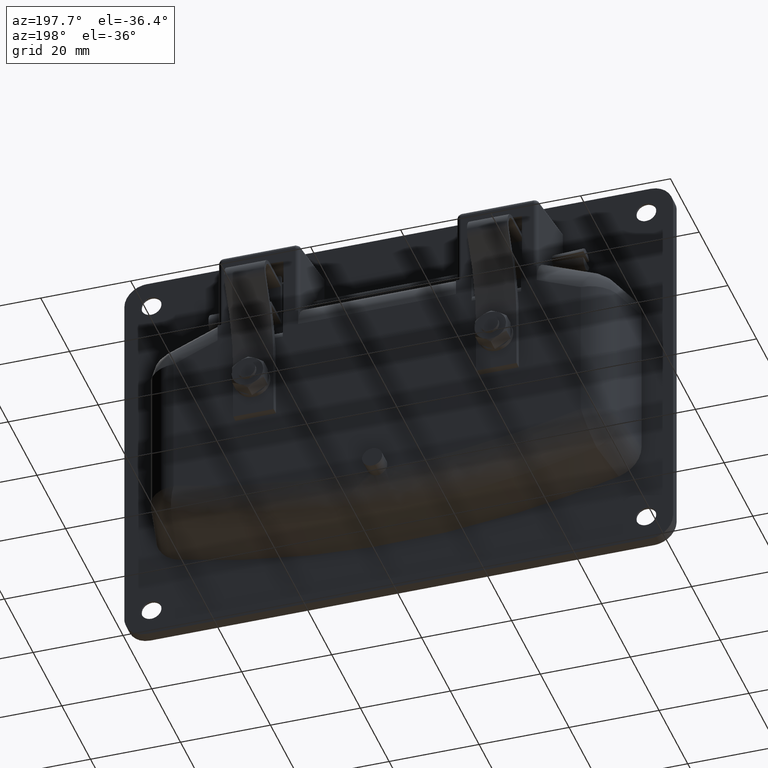
[diagram: clean part render]
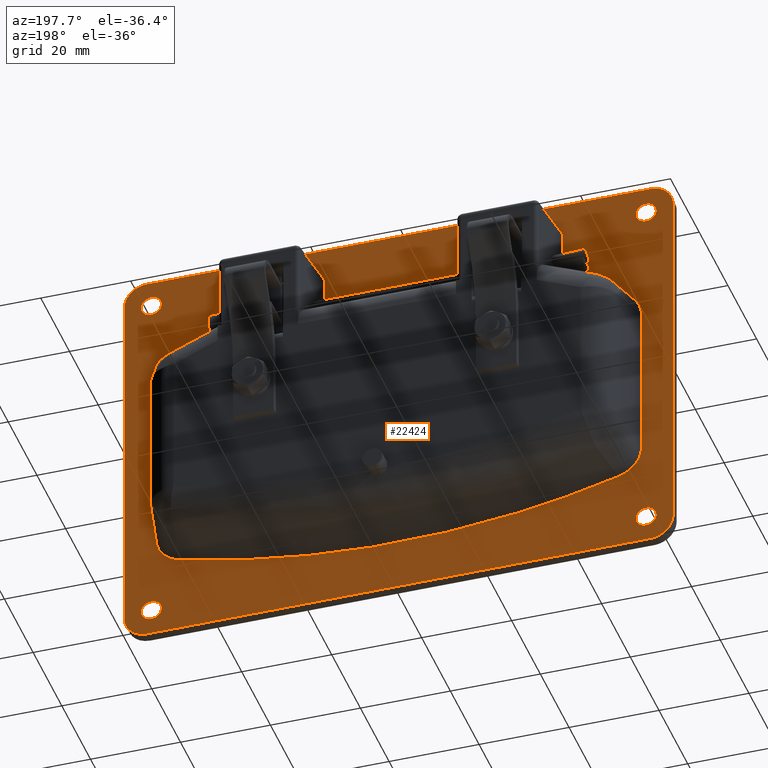
[diagram: same view with one face highlighted and labeled with its STEP entity id]
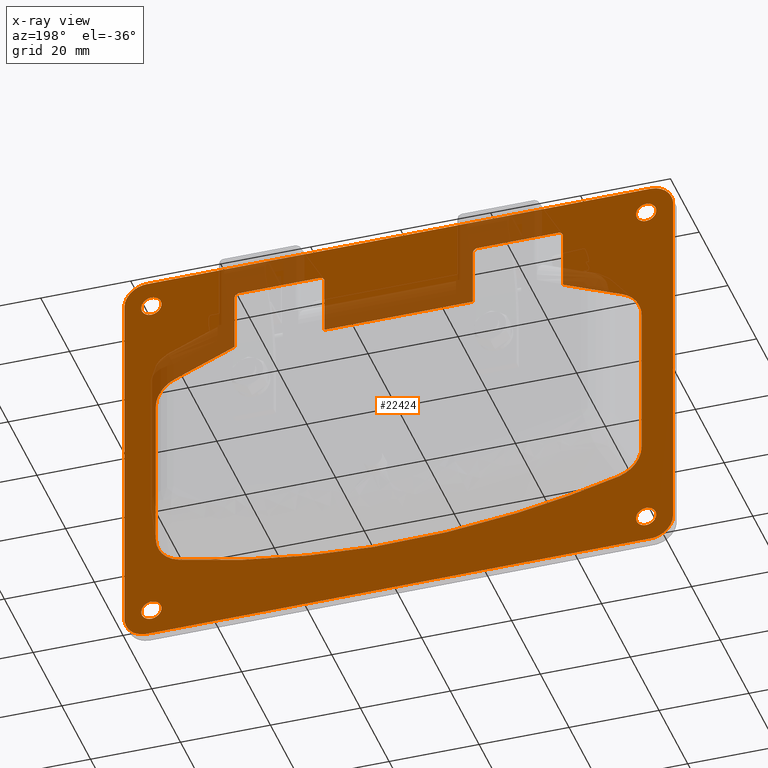
[diagram: x-ray of the same camera — body ghosted, the highlighted face saturated]
A machine part, auxiliary view. The second image highlights one B-rep face of the part: STEP entity #22424.
The next image is the same camera in x-ray: the body ghosted, the highlighted face saturated — about 16% of this face is hidden behind the body in this view.
In plain terms, the highlighted face is a freeform B-spline surface patch.
Its self-contained STEP definition (entity closure, byte-faithful):
#14169=CARTESIAN_POINT('',(-3.999999999999885,55.0,-69.750000000000000));
#14170=VERTEX_POINT('',#14169);
#14171=CARTESIAN_POINT('',(-3.999999999999884,56.284390523104292,-69.347387610697837));
#14172=VERTEX_POINT('',#14171);
#14173=CARTESIAN_POINT('',(-3.999999999999885,55.0,-69.750000000000000));
#14174=CARTESIAN_POINT('',(-3.999999999999885,55.705297851109535,-69.750000000000000));
#14175=CARTESIAN_POINT('',(-3.999999999999883,56.284390523104285,-69.347387610697837));
#14183=(BOUNDED_CURVE()B_SPLINE_CURVE(2,(#14173,#14174,#14175),.UNSPECIFIED.,.F.,.U.)B_SPLINE_CURVE_WITH_KNOTS((3,3),(0.500000000000000,0.598090608938928),.UNSPECIFIED.)CURVE()GEOMETRIC_REPRESENTATION_ITEM()RATIONAL_B_SPLINE_CURVE((1.0,0.885079703250023,0.860340221601227))REPRESENTATION_ITEM(''));
#14184=EDGE_CURVE('',#14170,#14172,#14183,.T.);
#14257=CARTESIAN_POINT('',(-3.999999999999885,57.243064000871406,-67.676532965744940));
#14258=VERTEX_POINT('',#14257);
#14264=CARTESIAN_POINT('',(-3.999999999999885,55.0,-65.250000000000000));
#14265=VERTEX_POINT('',#14264);
#14266=CARTESIAN_POINT('',(-3.999999999999884,57.243064000871414,-67.676532965744940));
#14267=CARTESIAN_POINT('',(-3.999999999999884,57.250000000000007,-67.588402741126188));
#14268=CARTESIAN_POINT('',(-3.999999999999885,57.250000000000000,-67.500000000000000));
#14269=CARTESIAN_POINT('',(-3.999999999999885,57.249999999999993,-65.250000000000000));
#14270=CARTESIAN_POINT('',(-3.999999999999885,55.0,-65.250000000000000));
#14278=(BOUNDED_CURVE()B_SPLINE_CURVE(2,(#14266,#14267,#14268,#14269,#14270),.UNSPECIFIED.,.F.,.U.)B_SPLINE_CURVE_WITH_KNOTS((3,2,3),(0.736331300578155,0.750000000000000,1.0),.UNSPECIFIED.)CURVE()GEOMETRIC_REPRESENTATION_ITEM()RATIONAL_B_SPLINE_CURVE((0.969723356057846,0.983986122517370,1.0,0.707106781186547,1.0))REPRESENTATION_ITEM(''));
#14279=EDGE_CURVE('',#14258,#14265,#14278,.T.);
#14281=CARTESIAN_POINT('',(-3.999999999999885,55.0,-65.250000000000000));
#14282=CARTESIAN_POINT('',(-3.999999999999885,52.749999999999986,-65.250000000000000));
#14283=CARTESIAN_POINT('',(-3.999999999999885,52.750000000000000,-67.500000000000000));
#14284=CARTESIAN_POINT('',(-3.999999999999885,52.749999999999986,-69.750000000000000));
#14285=CARTESIAN_POINT('',(-3.999999999999885,55.0,-69.750000000000000));
#14293=(BOUNDED_CURVE()B_SPLINE_CURVE(2,(#14281,#14282,#14283,#14284,#14285),.UNSPECIFIED.,.F.,.U.)B_SPLINE_CURVE_WITH_KNOTS((3,2,3),(0.0,0.250000000000000,0.500000000000000),.UNSPECIFIED.)CURVE()GEOMETRIC_REPRESENTATION_ITEM()RATIONAL_B_SPLINE_CURVE((1.0,0.707106781186547,1.0,0.707106781186547,1.0))REPRESENTATION_ITEM(''));
#14294=EDGE_CURVE('',#14265,#14170,#14293,.T.);
#14313=CARTESIAN_POINT('',(-3.999999999999884,56.284390523104300,-69.347387610697837));
#14314=CARTESIAN_POINT('',(-3.999999999999885,57.159445367538900,-68.739008436299613));
#14315=CARTESIAN_POINT('',(-3.999999999999885,57.243064000871414,-67.676532965744940));
#14323=(BOUNDED_CURVE()B_SPLINE_CURVE(2,(#14313,#14314,#14315),.UNSPECIFIED.,.F.,.U.)B_SPLINE_CURVE_WITH_KNOTS((3,3),(0.598090608938927,0.736331300578156),.UNSPECIFIED.)CURVE()GEOMETRIC_REPRESENTATION_ITEM()RATIONAL_B_SPLINE_CURVE((0.860340221601227,0.825474467469197,0.969723356057846))REPRESENTATION_ITEM(''));
#14324=EDGE_CURVE('',#14172,#14258,#14323,.T.);
#14493=CARTESIAN_POINT('',(-3.999999999999885,55.0,10.250000000000000));
#14494=VERTEX_POINT('',#14493);
#14495=CARTESIAN_POINT('',(-3.999999999999885,56.284390523104292,10.652612389302160));
#14496=VERTEX_POINT('',#14495);
#14497=CARTESIAN_POINT('',(-3.999999999999885,55.0,10.250000000000000));
#14498=CARTESIAN_POINT('',(-3.999999999999885,55.705297851109535,10.250000000000000));
#14499=CARTESIAN_POINT('',(-3.999999999999885,56.284390523104285,10.652612389302158));
#14507=(BOUNDED_CURVE()B_SPLINE_CURVE(2,(#14497,#14498,#14499),.UNSPECIFIED.,.F.,.U.)B_SPLINE_CURVE_WITH_KNOTS((3,3),(0.500000000000000,0.598090608938928),.UNSPECIFIED.)CURVE()GEOMETRIC_REPRESENTATION_ITEM()RATIONAL_B_SPLINE_CURVE((1.0,0.885079703250023,0.860340221601227))REPRESENTATION_ITEM(''));
#14508=EDGE_CURVE('',#14494,#14496,#14507,.T.);
#14581=CARTESIAN_POINT('',(-3.999999999999885,57.243064000871421,12.323467034255060));
#14582=VERTEX_POINT('',#14581);
#14588=CARTESIAN_POINT('',(-3.999999999999885,55.0,14.750000000000000));
#14589=VERTEX_POINT('',#14588);
#14590=CARTESIAN_POINT('',(-3.999999999999884,57.243064000871421,12.323467034255065));
#14591=CARTESIAN_POINT('',(-3.999999999999884,57.250000000000000,12.411597258873794));
#14592=CARTESIAN_POINT('',(-3.999999999999885,57.250000000000000,12.500000000000000));
#14593=CARTESIAN_POINT('',(-3.999999999999885,57.249999999999993,14.750000000000007));
#14594=CARTESIAN_POINT('',(-3.999999999999885,55.0,14.750000000000000));
#14602=(BOUNDED_CURVE()B_SPLINE_CURVE(2,(#14590,#14591,#14592,#14593,#14594),.UNSPECIFIED.,.F.,.U.)B_SPLINE_CURVE_WITH_KNOTS((3,2,3),(0.736331300578156,0.750000000000000,1.0),.UNSPECIFIED.)CURVE()GEOMETRIC_REPRESENTATION_ITEM()RATIONAL_B_SPLINE_CURVE((0.969723356057847,0.983986122517371,1.0,0.707106781186547,1.0))REPRESENTATION_ITEM(''));
#14603=EDGE_CURVE('',#14582,#14589,#14602,.T.);
#14605=CARTESIAN_POINT('',(-3.999999999999885,55.0,14.750000000000000));
#14606=CARTESIAN_POINT('',(-3.999999999999885,52.749999999999986,14.750000000000007));
#14607=CARTESIAN_POINT('',(-3.999999999999885,52.750000000000000,12.500000000000000));
#14608=CARTESIAN_POINT('',(-3.999999999999885,52.749999999999986,10.250000000000000));
#14609=CARTESIAN_POINT('',(-3.999999999999885,55.0,10.250000000000000));
#14617=(BOUNDED_CURVE()B_SPLINE_CURVE(2,(#14605,#14606,#14607,#14608,#14609),.UNSPECIFIED.,.F.,.U.)B_SPLINE_CURVE_WITH_KNOTS((3,2,3),(0.0,0.250000000000000,0.500000000000000),.UNSPECIFIED.)CURVE()GEOMETRIC_REPRESENTATION_ITEM()RATIONAL_B_SPLINE_CURVE((1.0,0.707106781186547,1.0,0.707106781186547,1.0))REPRESENTATION_ITEM(''));
#14618=EDGE_CURVE('',#14589,#14494,#14617,.T.);
#14637=CARTESIAN_POINT('',(-3.999999999999885,56.284390523104300,10.652612389302160));
#14638=CARTESIAN_POINT('',(-3.999999999999885,57.159445367538908,11.260991563700397));
#14639=CARTESIAN_POINT('',(-3.999999999999885,57.243064000871428,12.323467034255060));
#14647=(BOUNDED_CURVE()B_SPLINE_CURVE(2,(#14637,#14638,#14639),.UNSPECIFIED.,.F.,.U.)B_SPLINE_CURVE_WITH_KNOTS((3,3),(0.598090608938927,0.736331300578156),.UNSPECIFIED.)CURVE()GEOMETRIC_REPRESENTATION_ITEM()RATIONAL_B_SPLINE_CURVE((0.860340221601227,0.825474467469197,0.969723356057846))REPRESENTATION_ITEM(''));
#14648=EDGE_CURVE('',#14496,#14582,#14647,.T.);
#14841=CARTESIAN_POINT('',(-3.999999999999885,-57.245803296428832,-67.637359214286363));
#14842=VERTEX_POINT('',#14841);
#14848=CARTESIAN_POINT('',(-3.999999999999885,-55.0,-69.750000000000000));
#14849=VERTEX_POINT('',#14848);
#14850=CARTESIAN_POINT('',(-3.999999999999885,-55.0,-69.750000000000000));
#14851=CARTESIAN_POINT('',(-3.999999999999885,-57.116588649909062,-69.750000000000000));
#14852=CARTESIAN_POINT('',(-3.999999999999884,-57.245803296428839,-67.637359214286363));
#14860=(BOUNDED_CURVE()B_SPLINE_CURVE(2,(#14850,#14851,#14852),.UNSPECIFIED.,.F.,.U.)B_SPLINE_CURVE_WITH_KNOTS((3,3),(0.500000000000000,0.739332962190808),.UNSPECIFIED.)CURVE()GEOMETRIC_REPRESENTATION_ITEM()RATIONAL_B_SPLINE_CURVE((1.0,0.719603993343104,0.976072041563556))REPRESENTATION_ITEM(''));
#14861=EDGE_CURVE('',#14849,#14842,#14860,.T.);
#14863=CARTESIAN_POINT('',(-3.999999999999885,-54.208859557424127,-69.606323052174304));
#14864=VERTEX_POINT('',#14863);
#14865=CARTESIAN_POINT('',(-3.999999999999885,-54.208859557424134,-69.606323052174304));
#14866=CARTESIAN_POINT('',(-3.999999999999885,-54.591383381134811,-69.750000000000014));
#14867=CARTESIAN_POINT('',(-3.999999999999885,-55.0,-69.750000000000000));
#14875=(BOUNDED_CURVE()B_SPLINE_CURVE(2,(#14865,#14866,#14867),.UNSPECIFIED.,.F.,.U.)B_SPLINE_CURVE_WITH_KNOTS((3,3),(0.440284170869690,0.500000000000000),.UNSPECIFIED.)CURVE()GEOMETRIC_REPRESENTATION_ITEM()RATIONAL_B_SPLINE_CURVE((0.893499554600008,0.930038554367637,1.0))REPRESENTATION_ITEM(''));
#14876=EDGE_CURVE('',#14864,#14849,#14875,.T.);
#14926=CARTESIAN_POINT('',(-3.999999999999885,-55.0,-65.250000000000000));
#14927=VERTEX_POINT('',#14926);
#14928=CARTESIAN_POINT('',(-3.999999999999885,-55.0,-65.250000000000000));
#14929=CARTESIAN_POINT('',(-3.999999999999885,-52.749999999999986,-65.250000000000000));
#14930=CARTESIAN_POINT('',(-3.999999999999885,-52.750000000000000,-67.500000000000000));
#14931=CARTESIAN_POINT('',(-3.999999999999885,-52.749999999999993,-69.058371590004484));
#14932=CARTESIAN_POINT('',(-3.999999999999885,-54.208859557424127,-69.606323052174304));
#14940=(BOUNDED_CURVE()B_SPLINE_CURVE(2,(#14928,#14929,#14930,#14931,#14932),.UNSPECIFIED.,.F.,.U.)B_SPLINE_CURVE_WITH_KNOTS((3,2,3),(0.0,0.250000000000000,0.440284170869690),.UNSPECIFIED.)CURVE()GEOMETRIC_REPRESENTATION_ITEM()RATIONAL_B_SPLINE_CURVE((1.0,0.707106781186547,1.0,0.777068226818911,0.893499554600007))REPRESENTATION_ITEM(''));
#14941=EDGE_CURVE('',#14927,#14864,#14940,.T.);
#14943=CARTESIAN_POINT('',(-3.999999999999885,-57.245803296428825,-67.637359214286363));
#14944=CARTESIAN_POINT('',(-3.999999999999885,-57.250000000000000,-67.568743717755709));
#14945=CARTESIAN_POINT('',(-3.999999999999885,-57.250000000000000,-67.500000000000000));
#14946=CARTESIAN_POINT('',(-3.999999999999885,-57.249999999999993,-65.250000000000000));
#14947=CARTESIAN_POINT('',(-3.999999999999885,-55.0,-65.250000000000000));
#14955=(BOUNDED_CURVE()B_SPLINE_CURVE(2,(#14943,#14944,#14945,#14946,#14947),.UNSPECIFIED.,.F.,.U.)B_SPLINE_CURVE_WITH_KNOTS((3,2,3),(0.739332962190808,0.750000000000000,1.0),.UNSPECIFIED.)CURVE()GEOMETRIC_REPRESENTATION_ITEM()RATIONAL_B_SPLINE_CURVE((0.976072041563555,0.987502787843444,1.0,0.707106781186547,1.0))REPRESENTATION_ITEM(''));
#14956=EDGE_CURVE('',#14842,#14927,#14955,.T.);
#16639=CARTESIAN_POINT('',(-3.999999999999885,-57.245803296428839,12.362640785713630));
#16640=VERTEX_POINT('',#16639);
#16646=CARTESIAN_POINT('',(-3.999999999999885,-55.0,10.250000000000000));
#16647=VERTEX_POINT('',#16646);
#16648=CARTESIAN_POINT('',(-3.999999999999885,-55.0,10.250000000000000));
#16649=CARTESIAN_POINT('',(-3.999999999999885,-57.116588649909062,10.250000000000000));
#16650=CARTESIAN_POINT('',(-3.999999999999884,-57.245803296428839,12.362640785713630));
#16658=(BOUNDED_CURVE()B_SPLINE_CURVE(2,(#16648,#16649,#16650),.UNSPECIFIED.,.F.,.U.)B_SPLINE_CURVE_WITH_KNOTS((3,3),(0.500000000000000,0.739332962190808),.UNSPECIFIED.)CURVE()GEOMETRIC_REPRESENTATION_ITEM()RATIONAL_B_SPLINE_CURVE((1.0,0.719603993343104,0.976072041563556))REPRESENTATION_ITEM(''));
#16659=EDGE_CURVE('',#16647,#16640,#16658,.T.);
#16661=CARTESIAN_POINT('',(-3.999999999999884,-54.208859557424127,10.393676947825700));
#16662=VERTEX_POINT('',#16661);
#16663=CARTESIAN_POINT('',(-3.999999999999884,-54.208859557424134,10.393676947825696));
#16664=CARTESIAN_POINT('',(-3.999999999999885,-54.591383381134804,10.250000000000000));
#16665=CARTESIAN_POINT('',(-3.999999999999885,-55.0,10.250000000000000));
#16673=(BOUNDED_CURVE()B_SPLINE_CURVE(2,(#16663,#16664,#16665),.UNSPECIFIED.,.F.,.U.)B_SPLINE_CURVE_WITH_KNOTS((3,3),(0.440284170869690,0.500000000000000),.UNSPECIFIED.)CURVE()GEOMETRIC_REPRESENTATION_ITEM()RATIONAL_B_SPLINE_CURVE((0.893499554600008,0.930038554367637,1.0))REPRESENTATION_ITEM(''));
#16674=EDGE_CURVE('',#16662,#16647,#16673,.T.);
#16724=CARTESIAN_POINT('',(-3.999999999999885,-55.0,14.750000000000000));
#16725=VERTEX_POINT('',#16724);
#16726=CARTESIAN_POINT('',(-3.999999999999885,-55.0,14.750000000000000));
#16727=CARTESIAN_POINT('',(-3.999999999999885,-52.749999999999986,14.750000000000007));
#16728=CARTESIAN_POINT('',(-3.999999999999885,-52.750000000000000,12.500000000000000));
#16729=CARTESIAN_POINT('',(-3.999999999999884,-52.750000000000000,10.941628409995506));
#16730=CARTESIAN_POINT('',(-3.999999999999884,-54.208859557424127,10.393676947825696));
#16738=(BOUNDED_CURVE()B_SPLINE_CURVE(2,(#16726,#16727,#16728,#16729,#16730),.UNSPECIFIED.,.F.,.U.)B_SPLINE_CURVE_WITH_KNOTS((3,2,3),(0.0,0.250000000000000,0.440284170869690),.UNSPECIFIED.)CURVE()GEOMETRIC_REPRESENTATION_ITEM()RATIONAL_B_SPLINE_CURVE((1.0,0.707106781186547,1.0,0.777068226818910,0.893499554600008))REPRESENTATION_ITEM(''));
#16739=EDGE_CURVE('',#16725,#16662,#16738,.T.);
#16741=CARTESIAN_POINT('',(-3.999999999999885,-57.245803296428839,12.362640785713634));
#16742=CARTESIAN_POINT('',(-3.999999999999884,-57.250000000000000,12.431256282244306));
#16743=CARTESIAN_POINT('',(-3.999999999999885,-57.250000000000000,12.500000000000000));
#16744=CARTESIAN_POINT('',(-3.999999999999885,-57.249999999999993,14.750000000000007));
#16745=CARTESIAN_POINT('',(-3.999999999999885,-55.0,14.750000000000000));
#16753=(BOUNDED_CURVE()B_SPLINE_CURVE(2,(#16741,#16742,#16743,#16744,#16745),.UNSPECIFIED.,.F.,.U.)B_SPLINE_CURVE_WITH_KNOTS((3,2,3),(0.739332962190808,0.750000000000000,1.0),.UNSPECIFIED.)CURVE()GEOMETRIC_REPRESENTATION_ITEM()RATIONAL_B_SPLINE_CURVE((0.976072041563556,0.987502787843444,1.0,0.707106781186547,1.0))REPRESENTATION_ITEM(''));
#16754=EDGE_CURVE('',#16640,#16725,#16753,.T.);
#18558=CARTESIAN_POINT('',(-3.999999999999775,16.500000000000000,10.502367310374559));
#18559=VERTEX_POINT('',#18558);
#18560=CARTESIAN_POINT('',(-3.999999999999785,17.497630294227001,11.500000000000000));
#18561=VERTEX_POINT('',#18560);
#18562=CARTESIAN_POINT('',(-3.999999999999775,16.500000000000000,10.502367310374559));
#18563=CARTESIAN_POINT('',(-3.999999999999896,16.499999999999982,11.500000000000030));
#18564=CARTESIAN_POINT('',(-3.999999999999785,17.497630294227001,11.500000000000000));
#18572=(BOUNDED_CURVE()B_SPLINE_CURVE(2,(#18562,#18563,#18564),.UNSPECIFIED.,.F.,.U.)CURVE()GEOMETRIC_REPRESENTATION_ITEM()QUASI_UNIFORM_CURVE()RATIONAL_B_SPLINE_CURVE((1.0,0.708777612134040,1.0))REPRESENTATION_ITEM(''));
#18573=EDGE_CURVE('',#18559,#18561,#18572,.T.);
#18704=CARTESIAN_POINT('',(-3.999999999999785,35.502369705882757,11.500000000000000));
#18705=VERTEX_POINT('',#18704);
#18706=CARTESIAN_POINT('',(-3.999999999999775,36.500000000000000,10.502371875350519));
#18707=VERTEX_POINT('',#18706);
#18708=CARTESIAN_POINT('',(-3.999999999999785,35.502369705882757,11.500000000000000));
#18709=CARTESIAN_POINT('',(-3.999999999999895,36.500000000000028,11.499999999999945));
#18710=CARTESIAN_POINT('',(-3.999999999999775,36.500000000000000,10.502371875350519));
#18718=(BOUNDED_CURVE()B_SPLINE_CURVE(2,(#18708,#18709,#18710),.UNSPECIFIED.,.F.,.U.)CURVE()GEOMETRIC_REPRESENTATION_ITEM()QUASI_UNIFORM_CURVE()RATIONAL_B_SPLINE_CURVE((1.0,0.708779218474709,1.0))REPRESENTATION_ITEM(''));
#18719=EDGE_CURVE('',#18705,#18707,#18718,.T.);
#19013=CARTESIAN_POINT('',(-3.999999999999775,-17.497630294227001,11.500000000000000));
#19014=VERTEX_POINT('',#19013);
#19015=CARTESIAN_POINT('',(-3.999999999999770,-16.500000000000000,10.502367310374559));
#19016=VERTEX_POINT('',#19015);
#19017=CARTESIAN_POINT('',(-3.999999999999775,-17.497630294227001,11.500000000000000));
#19018=CARTESIAN_POINT('',(-3.999999999999896,-16.499999999999904,11.500000000000028));
#19019=CARTESIAN_POINT('',(-3.999999999999770,-16.500000000000000,10.502367310374559));
#19027=(BOUNDED_CURVE()B_SPLINE_CURVE(2,(#19017,#19018,#19019),.UNSPECIFIED.,.F.,.U.)CURVE()GEOMETRIC_REPRESENTATION_ITEM()QUASI_UNIFORM_CURVE()RATIONAL_B_SPLINE_CURVE((1.0,0.708777612134028,1.0))REPRESENTATION_ITEM(''));
#19028=EDGE_CURVE('',#19014,#19016,#19027,.T.);
#19159=CARTESIAN_POINT('',(-3.999999999999775,-36.500000000000000,10.502371875350519));
#19160=VERTEX_POINT('',#19159);
#19161=CARTESIAN_POINT('',(-3.999999999999775,-35.502369705882757,11.500000000000000));
#19162=VERTEX_POINT('',#19161);
#19163=CARTESIAN_POINT('',(-3.999999999999895,-36.500000000000000,10.502371875350519));
#19164=CARTESIAN_POINT('',(-3.999999999999896,-36.499999999999986,11.499999999999980));
#19165=CARTESIAN_POINT('',(-3.999999999999775,-35.502369705882757,11.500000000000000));
#19173=(BOUNDED_CURVE()B_SPLINE_CURVE(2,(#19163,#19164,#19165),.UNSPECIFIED.,.F.,.U.)CURVE()GEOMETRIC_REPRESENTATION_ITEM()QUASI_UNIFORM_CURVE()RATIONAL_B_SPLINE_CURVE((1.0,0.708779218474698,1.0))REPRESENTATION_ITEM(''));
#19174=EDGE_CURVE('',#19160,#19162,#19173,.T.);
#20875=CARTESIAN_POINT('',(-3.999999999999775,-17.497630294227001,11.500000000000000));
#20876=CARTESIAN_POINT('',(-3.999999999999775,-35.502369705882757,11.500000000000000));
#20877=QUASI_UNIFORM_CURVE('',1,(#20875,#20876),.UNSPECIFIED.,.F.,.U.);
#20878=EDGE_CURVE('',#19014,#19162,#20877,.T.);
#20943=CARTESIAN_POINT('',(-3.999999999999785,35.502369705882757,11.500000000000000));
#20944=CARTESIAN_POINT('',(-3.999999999999785,17.497630294227001,11.500000000000000));
#20945=QUASI_UNIFORM_CURVE('',1,(#20943,#20944),.UNSPECIFIED.,.F.,.U.);
#20946=EDGE_CURVE('',#18705,#18561,#20945,.T.);
#21117=CARTESIAN_POINT('',(-3.999999999999885,48.904719854569102,-55.590764726289407));
#21118=VERTEX_POINT('',#21117);
#21126=CARTESIAN_POINT('',(-3.999999999999885,54.000010000000003,-48.958509861067803));
#21127=VERTEX_POINT('',#21126);
#21128=CARTESIAN_POINT('',(-3.999999999999885,54.000010000000003,-48.958509861067803));
#21129=CARTESIAN_POINT('',(-3.999999999999885,54.000010000000003,-49.336819322192312));
#21130=CARTESIAN_POINT('',(-3.999999999999885,53.969625538145472,-49.710006324834140));
#21131=CARTESIAN_POINT('',(-3.999999999999885,53.849801260779323,-50.446424300659729));
#21132=CARTESIAN_POINT('',(-3.999999999999884,53.760368880545442,-50.809656527342803));
#21133=CARTESIAN_POINT('',(-3.999999999999885,53.609860292732542,-51.257169397939933));
#21134=CARTESIAN_POINT('',(-3.999999999999885,53.577832064843747,-51.346245544184299));
#21135=CARTESIAN_POINT('',(-3.999999999999885,53.510474387770593,-51.522087235248222));
#21136=CARTESIAN_POINT('',(-3.999999999999885,53.475078408484961,-51.609056597149298));
#21137=CARTESIAN_POINT('',(-3.999999999999884,53.363805408097583,-51.867147002494818));
#21138=CARTESIAN_POINT('',(-3.999999999999884,53.282851388108618,-52.035454833721253));
#21139=CARTESIAN_POINT('',(-3.999999999999885,53.019901950805043,-52.529247725127931));
#21140=CARTESIAN_POINT('',(-3.999999999999885,52.817952437745241,-52.843676035602847));
#21141=CARTESIAN_POINT('',(-3.999999999999885,52.531007948690643,-53.217590443427333));
#21142=CARTESIAN_POINT('',(-3.999999999999885,52.471754339023427,-53.291555979141563));
#21143=CARTESIAN_POINT('',(-3.999999999999885,52.350769832471151,-53.436280116401143));
#21144=CARTESIAN_POINT('',(-3.999999999999885,52.288960103660578,-53.507154916401852));
#21145=CARTESIAN_POINT('',(-3.999999999999885,52.099643595925940,-53.715391006432448));
#21146=CARTESIAN_POINT('',(-3.999999999999884,51.968255746567337,-53.848371042956209));
#21147=CARTESIAN_POINT('',(-3.999999999999884,51.558844510341913,-54.230098378811213));
#21148=CARTESIAN_POINT('',(-3.999999999999884,51.265671175249103,-54.461743240837407));
#21149=CARTESIAN_POINT('',(-3.999999999999885,50.873375223225402,-54.722141218999077));
#21150=CARTESIAN_POINT('',(-3.999999999999885,50.793440197455723,-54.772858509795547));
#21151=CARTESIAN_POINT('',(-3.999999999999885,50.631904854960332,-54.870724765841061));
#21152=CARTESIAN_POINT('',(-3.999999999999885,50.550357264420477,-54.917854246241582));
#21153=CARTESIAN_POINT('',(-3.999999999999885,50.303414153338487,-55.053922903917268));
#21154=CARTESIAN_POINT('',(-3.999999999999885,50.135721978150407,-55.137550819202922));
#21155=CARTESIAN_POINT('',(-3.999999999999885,49.623629955568163,-55.367585254209729));
#21156=CARTESIAN_POINT('',(-3.999999999999886,49.270271810511282,-55.493274742769387));
#21157=CARTESIAN_POINT('',(-3.999999999999885,48.904719854569102,-55.590764726289407));
#21158=B_SPLINE_CURVE_WITH_KNOTS('',3,(#21128,#21129,#21130,#21131,#21132,#21133,#21134,#21135,#21136,#21137,#21138,#21139,#21140,#21141,#21142,#21143,#21144,#21145,#21146,#21147,#21148,#21149,#21150,#21151,#21152,#21153,#21154,#21155,#21156,#21157),.UNSPECIFIED.,.F.,.U.,(4,2,2,2,2,2,2,2,2,2,2,2,2,2,4),(0.0,0.125000000000001,0.250000000000003,0.281250000000002,0.312500000000001,0.375000000000001,0.500000000000000,0.531249999999999,0.562499999999999,0.625000000000000,0.750000000000001,0.781250000000001,0.812500000000002,0.875000000000002,1.0),.UNSPECIFIED.);
#21159=EDGE_CURVE('',#21127,#21118,#21158,.T.);
#21477=CARTESIAN_POINT('',(-3.999999999999885,49.775946349294699,-7.906648094483269));
#21478=VERTEX_POINT('',#21477);
#21479=CARTESIAN_POINT('',(-3.999999999999885,54.000010000000003,-14.242716690154801));
#21480=VERTEX_POINT('',#21479);
#21481=CARTESIAN_POINT('',(-3.999999999999885,49.775946349294728,-7.906648094483250));
#21482=CARTESIAN_POINT('',(-3.999999999999884,54.000010000000003,-9.666655201972750));
#21483=CARTESIAN_POINT('',(-3.999999999999885,54.000009999999968,-14.242716690154820));
#21491=(BOUNDED_CURVE()B_SPLINE_CURVE(2,(#21481,#21482,#21483),.UNSPECIFIED.,.F.,.U.)CURVE()GEOMETRIC_REPRESENTATION_ITEM()QUASI_UNIFORM_CURVE()RATIONAL_B_SPLINE_CURVE((1.0,0.839130748689743,1.0))REPRESENTATION_ITEM(''));
#21492=EDGE_CURVE('',#21478,#21480,#21491,.T.);
#21631=CARTESIAN_POINT('',(-3.999999999999885,-48.904709666944498,-55.590766109790202));
#21632=VERTEX_POINT('',#21631);
#21633=CARTESIAN_POINT('',(-3.999999999999885,-54.0,-48.958511194530502));
#21634=VERTEX_POINT('',#21633);
#21635=CARTESIAN_POINT('',(-3.999999999999890,-48.904709666944498,-55.590766109790202));
#21636=CARTESIAN_POINT('',(-3.999999999999891,-49.270243207709058,-55.493281048537192));
#21637=CARTESIAN_POINT('',(-3.999999999999885,-49.622997358494644,-55.367757134568372));
#21638=CARTESIAN_POINT('',(-3.999999999999885,-50.303668085309972,-55.062213974573289));
#21639=CARTESIAN_POINT('',(-3.999999999999884,-50.631587783717542,-54.882201579256872));
#21640=CARTESIAN_POINT('',(-3.999999999999885,-51.025203433866217,-54.621457938664349));
#21641=CARTESIAN_POINT('',(-3.999999999999885,-51.103018135679669,-54.567557644590373));
#21642=CARTESIAN_POINT('',(-3.999999999999884,-51.255564310807493,-54.457162760419429));
#21643=CARTESIAN_POINT('',(-3.999999999999885,-51.330475576595219,-54.400551364790893));
#21644=CARTESIAN_POINT('',(-3.999999999999885,-51.551176535967663,-54.226529959235769));
#21645=CARTESIAN_POINT('',(-3.999999999999885,-51.692939787100933,-54.104939371006083));
#21646=CARTESIAN_POINT('',(-3.999999999999884,-52.102298710033473,-53.723626929278673));
#21647=CARTESIAN_POINT('',(-3.999999999999885,-52.354069258193100,-53.447474152123100));
#21648=CARTESIAN_POINT('',(-3.999999999999885,-52.641415097267007,-53.073868187838862));
#21649=CARTESIAN_POINT('',(-3.999999999999885,-52.697614025064013,-52.997555860974487));
#21650=CARTESIAN_POINT('',(-3.999999999999885,-52.806274905979947,-52.843363915919340));
#21651=CARTESIAN_POINT('',(-3.999999999999886,-52.858828802625077,-52.765378209554569));
#21652=CARTESIAN_POINT('',(-3.999999999999885,-53.011248644052358,-52.528795852650937));
#21653=CARTESIAN_POINT('',(-3.999999999999885,-53.105881168826443,-52.367578185488782));
#21654=CARTESIAN_POINT('',(-3.999999999999885,-53.369217985155302,-51.873627885408581));
#21655=CARTESIAN_POINT('',(-3.999999999999885,-53.517493303779879,-51.530663954875301));
#21656=CARTESIAN_POINT('',(-3.999999999999884,-53.668007893219851,-51.084515600791512));
#21657=CARTESIAN_POINT('',(-3.999999999999884,-53.696414193591387,-50.994210990453752));
#21658=CARTESIAN_POINT('',(-3.999999999999884,-53.749349889563568,-50.812911988924483));
#21659=CARTESIAN_POINT('',(-3.999999999999884,-53.773874008091653,-50.721973685242283));
#21660=CARTESIAN_POINT('',(-3.999999999999885,-53.841713426856437,-50.448306963840693));
#21661=CARTESIAN_POINT('',(-3.999999999999885,-53.879304972506823,-50.264728100079452));
#21662=CARTESIAN_POINT('',(-3.999999999999885,-53.969611200642753,-49.710653111061418));
#21663=CARTESIAN_POINT('',(-3.999999999999885,-54.000000000000007,-49.336839764800409));
#21664=CARTESIAN_POINT('',(-3.999999999999885,-54.0,-48.958511194530502));
#21665=B_SPLINE_CURVE_WITH_KNOTS('',3,(#21635,#21636,#21637,#21638,#21639,#21640,#21641,#21642,#21643,#21644,#21645,#21646,#21647,#21648,#21649,#21650,#21651,#21652,#21653,#21654,#21655,#21656,#21657,#21658,#21659,#21660,#21661,#21662,#21663,#21664),.UNSPECIFIED.,.F.,.U.,(4,2,2,2,2,2,2,2,2,2,2,2,2,2,4),(0.0,0.124999999999999,0.249999999999998,0.281249999999999,0.312500000000000,0.375000000000002,0.500000000000004,0.531250000000003,0.562500000000003,0.625000000000000,0.749999999999995,0.781249999999995,0.812499999999995,0.874999999999996,1.0),.UNSPECIFIED.);
#21666=EDGE_CURVE('',#21632,#21634,#21665,.T.);
#21853=CARTESIAN_POINT('',(-3.999999999999885,-54.0,-14.242717137455100));
#21854=VERTEX_POINT('',#21853);
#21855=CARTESIAN_POINT('',(-3.999999999999885,-49.775965217850107,-7.906660570292790));
#21856=VERTEX_POINT('',#21855);
#21857=CARTESIAN_POINT('',(-3.999999999999885,-53.999999999999972,-14.242717137455060));
#21858=CARTESIAN_POINT('',(-3.999999999999885,-53.999999999999936,-9.666678236253846));
#21859=CARTESIAN_POINT('',(-3.999999999999885,-49.775965217850100,-7.906660570292798));
#21867=(BOUNDED_CURVE()B_SPLINE_CURVE(2,(#21857,#21858,#21859),.UNSPECIFIED.,.F.,.U.)CURVE()GEOMETRIC_REPRESENTATION_ITEM()QUASI_UNIFORM_CURVE()RATIONAL_B_SPLINE_CURVE((1.0,0.839131953504565,1.0))REPRESENTATION_ITEM(''));
#21868=EDGE_CURVE('',#21854,#21856,#21867,.T.);
#21910=CARTESIAN_POINT('',(-3.999999999999885,36.499922241509651,-2.375032399013690));
#21911=VERTEX_POINT('',#21910);
#21912=CARTESIAN_POINT('',(-3.999999999999885,49.775946349294699,-7.906648094483269));
#21913=CARTESIAN_POINT('',(-3.999999999999885,36.499922241509651,-2.375032399013690));
#21914=QUASI_UNIFORM_CURVE('',1,(#21912,#21913),.UNSPECIFIED.,.F.,.U.);
#21915=EDGE_CURVE('',#21478,#21911,#21914,.T.);
#21935=CARTESIAN_POINT('',(-3.999999999999885,54.000010000000003,-48.958509861067803));
#21936=CARTESIAN_POINT('',(-3.999999999999885,54.000010000000003,-14.242716690154801));
#21937=QUASI_UNIFORM_CURVE('',1,(#21935,#21936),.UNSPECIFIED.,.F.,.U.);
#21938=EDGE_CURVE('',#21127,#21480,#21937,.T.);
#21958=CARTESIAN_POINT('',(-3.999999999999885,-48.904709666944491,-55.590766109790273));
#21959=CARTESIAN_POINT('',(-3.999999999999885,0.000005278296973,-68.633287794740625));
#21960=CARTESIAN_POINT('',(-3.999999999999885,48.904719854569088,-55.590764726289493));
#21968=(BOUNDED_CURVE()B_SPLINE_CURVE(2,(#21958,#21959,#21960),.UNSPECIFIED.,.F.,.U.)CURVE()GEOMETRIC_REPRESENTATION_ITEM()QUASI_UNIFORM_CURVE()RATIONAL_B_SPLINE_CURVE((1.0,0.966228716449374,1.0))REPRESENTATION_ITEM(''));
#21969=EDGE_CURVE('',#21632,#21118,#21968,.T.);
#21982=CARTESIAN_POINT('',(-3.999999999999885,-54.0,-14.242717137455100));
#21983=CARTESIAN_POINT('',(-3.999999999999885,-54.0,-48.958511194530502));
#21984=QUASI_UNIFORM_CURVE('',1,(#21982,#21983),.UNSPECIFIED.,.F.,.U.);
#21985=EDGE_CURVE('',#21854,#21634,#21984,.T.);
#21998=CARTESIAN_POINT('',(-3.999999999999885,-36.500003786403603,-2.375000000000090));
#21999=VERTEX_POINT('',#21998);
#22000=CARTESIAN_POINT('',(-3.999999999999885,-36.500003786403603,-2.375000000000090));
#22001=CARTESIAN_POINT('',(-3.999999999999885,-49.775965217850107,-7.906660570292790));
#22002=QUASI_UNIFORM_CURVE('',1,(#22000,#22001),.UNSPECIFIED.,.F.,.U.);
#22003=EDGE_CURVE('',#21999,#21856,#22002,.T.);
#22029=CARTESIAN_POINT('',(-3.999999999999895,-61.0,13.500000000000000));
#22030=VERTEX_POINT('',#22029);
#22031=CARTESIAN_POINT('',(-3.999999999999895,-56.0,18.500000000000000));
#22032=VERTEX_POINT('',#22031);
#22033=CARTESIAN_POINT('',(-3.999999999999895,-61.0,13.500000000000000));
#22034=CARTESIAN_POINT('',(-3.999999999999895,-60.999999999999993,18.500000000000000));
#22035=CARTESIAN_POINT('',(-3.999999999999895,-56.0,18.500000000000000));
#22043=(BOUNDED_CURVE()B_SPLINE_CURVE(2,(#22033,#22034,#22035),.UNSPECIFIED.,.F.,.U.)CURVE()GEOMETRIC_REPRESENTATION_ITEM()QUASI_UNIFORM_CURVE()RATIONAL_B_SPLINE_CURVE((1.0,0.707106781186548,1.0))REPRESENTATION_ITEM(''));
#22044=EDGE_CURVE('',#22030,#22032,#22043,.T.);
#22081=CARTESIAN_POINT('',(-3.999999999999895,-61.0,-68.500000000000000));
#22082=VERTEX_POINT('',#22081);
#22083=CARTESIAN_POINT('',(-3.999999999999895,-61.0,-68.500000000000000));
#22084=CARTESIAN_POINT('',(-3.999999999999895,-61.0,13.500000000000000));
#22085=QUASI_UNIFORM_CURVE('',1,(#22083,#22084),.UNSPECIFIED.,.F.,.U.);
#22086=EDGE_CURVE('',#22082,#22030,#22085,.T.);
#22118=CARTESIAN_POINT('',(-3.999999999999895,-56.0,-73.500000000000000));
#22119=VERTEX_POINT('',#22118);
#22120=CARTESIAN_POINT('',(-3.999999999999895,-56.0,-73.500000000000014));
#22121=CARTESIAN_POINT('',(-3.999999999999895,-60.999999999999993,-73.500000000000014));
#22122=CARTESIAN_POINT('',(-3.999999999999895,-61.0,-68.500000000000000));
#22130=(BOUNDED_CURVE()B_SPLINE_CURVE(2,(#22120,#22121,#22122),.UNSPECIFIED.,.F.,.U.)CURVE()GEOMETRIC_REPRESENTATION_ITEM()QUASI_UNIFORM_CURVE()RATIONAL_B_SPLINE_CURVE((1.0,0.707106781186548,1.0))REPRESENTATION_ITEM(''));
#22131=EDGE_CURVE('',#22119,#22082,#22130,.T.);
#22162=CARTESIAN_POINT('',(-3.999999999999895,56.0,-73.500000000000000));
#22163=VERTEX_POINT('',#22162);
#22164=CARTESIAN_POINT('',(-3.999999999999895,56.0,-73.500000000000000));
#22165=CARTESIAN_POINT('',(-3.999999999999895,-56.0,-73.500000000000000));
#22166=QUASI_UNIFORM_CURVE('',1,(#22164,#22165),.UNSPECIFIED.,.F.,.U.);
#22167=EDGE_CURVE('',#22163,#22119,#22166,.T.);
#22199=CARTESIAN_POINT('',(-3.999999999999895,61.0,-68.500000000000000));
#22200=VERTEX_POINT('',#22199);
#22201=CARTESIAN_POINT('',(-3.999999999999895,61.0,-68.500000000000000));
#22202=CARTESIAN_POINT('',(-3.999999999999895,60.999999999999993,-73.500000000000014));
#22203=CARTESIAN_POINT('',(-3.999999999999895,56.0,-73.500000000000014));
#22211=(BOUNDED_CURVE()B_SPLINE_CURVE(2,(#22201,#22202,#22203),.UNSPECIFIED.,.F.,.U.)CURVE()GEOMETRIC_REPRESENTATION_ITEM()QUASI_UNIFORM_CURVE()RATIONAL_B_SPLINE_CURVE((1.0,0.707106781186548,1.0))REPRESENTATION_ITEM(''));
#22212=EDGE_CURVE('',#22200,#22163,#22211,.T.);
#22243=CARTESIAN_POINT('',(-3.999999999999895,61.0,13.500000000000000));
#22244=VERTEX_POINT('',#22243);
#22245=CARTESIAN_POINT('',(-3.999999999999895,61.0,13.500000000000000));
#22246=CARTESIAN_POINT('',(-3.999999999999895,61.0,-68.500000000000000));
#22247=QUASI_UNIFORM_CURVE('',1,(#22245,#22246),.UNSPECIFIED.,.F.,.U.);
#22248=EDGE_CURVE('',#22244,#22200,#22247,.T.);
#22280=CARTESIAN_POINT('',(-3.999999999999895,56.0,18.500000000000000));
#22281=VERTEX_POINT('',#22280);
#22282=CARTESIAN_POINT('',(-3.999999999999895,56.0,18.500000000000000));
#22283=CARTESIAN_POINT('',(-3.999999999999895,60.999999999999993,18.500000000000000));
#22284=CARTESIAN_POINT('',(-3.999999999999895,61.0,13.500000000000000));
#22292=(BOUNDED_CURVE()B_SPLINE_CURVE(2,(#22282,#22283,#22284),.UNSPECIFIED.,.F.,.U.)CURVE()GEOMETRIC_REPRESENTATION_ITEM()QUASI_UNIFORM_CURVE()RATIONAL_B_SPLINE_CURVE((1.0,0.707106781186548,1.0))REPRESENTATION_ITEM(''));
#22293=EDGE_CURVE('',#22281,#22244,#22292,.T.);
#22324=CARTESIAN_POINT('',(-3.999999999999895,-56.0,18.500000000000000));
#22325=CARTESIAN_POINT('',(-3.999999999999895,56.0,18.500000000000000));
#22326=QUASI_UNIFORM_CURVE('',1,(#22324,#22325),.UNSPECIFIED.,.F.,.U.);
#22327=EDGE_CURVE('',#22032,#22281,#22326,.T.);
#22339=CARTESIAN_POINT('',(-3.999999999999885,67.093899763540350,23.095399821686151));
#22340=CARTESIAN_POINT('',(-3.999999999999885,-67.093903035835339,23.095399821686151));
#22341=CARTESIAN_POINT('',(-3.999999999999885,67.093899763540350,-78.095402289318429));
#22342=CARTESIAN_POINT('',(-3.999999999999885,-67.093903035835339,-78.095402289318429));
#22343=B_SPLINE_SURFACE_WITH_KNOTS('',1,1,((#22339,#22341),(#22340,#22342)),.UNSPECIFIED.,.F.,.F.,.U.,(2,2),(2,2),(0.0,134.187802799375700),(0.0,101.190802111004600),.UNSPECIFIED.);
#22344=ORIENTED_EDGE('',*,*,#22212,.F.);
#22345=ORIENTED_EDGE('',*,*,#22248,.F.);
#22346=ORIENTED_EDGE('',*,*,#22293,.F.);
#22347=ORIENTED_EDGE('',*,*,#22327,.F.);
#22348=ORIENTED_EDGE('',*,*,#22044,.F.);
#22349=ORIENTED_EDGE('',*,*,#22086,.F.);
#22350=ORIENTED_EDGE('',*,*,#22131,.F.);
#22351=ORIENTED_EDGE('',*,*,#22167,.F.);
#22352=EDGE_LOOP('',(#22344,#22345,#22346,#22347,#22348,#22349,#22350,#22351));
#22353=FACE_OUTER_BOUND('',#22352,.T.);
#22354=CARTESIAN_POINT('',(-3.999999999999885,36.499922241509651,-2.375032399013690));
#22355=CARTESIAN_POINT('',(-3.999999999999775,36.500000000000000,10.502371875350519));
#22356=QUASI_UNIFORM_CURVE('',1,(#22354,#22355),.UNSPECIFIED.,.F.,.U.);
#22357=EDGE_CURVE('',#21911,#18707,#22356,.T.);
#22358=ORIENTED_EDGE('',*,*,#22357,.F.);
#22359=ORIENTED_EDGE('',*,*,#21915,.F.);
#22360=ORIENTED_EDGE('',*,*,#21492,.T.);
#22361=ORIENTED_EDGE('',*,*,#21938,.F.);
#22362=ORIENTED_EDGE('',*,*,#21159,.T.);
#22363=ORIENTED_EDGE('',*,*,#21969,.F.);
#22364=ORIENTED_EDGE('',*,*,#21666,.T.);
#22365=ORIENTED_EDGE('',*,*,#21985,.F.);
#22366=ORIENTED_EDGE('',*,*,#21868,.T.);
#22367=ORIENTED_EDGE('',*,*,#22003,.F.);
#22368=CARTESIAN_POINT('',(-3.999999999999885,-36.500003786403603,-2.375000000000090));
#22369=CARTESIAN_POINT('',(-3.999999999999775,-36.500000000000000,10.502371875350519));
#22370=QUASI_UNIFORM_CURVE('',1,(#22368,#22369),.UNSPECIFIED.,.F.,.U.);
#22371=EDGE_CURVE('',#21999,#19160,#22370,.T.);
#22372=ORIENTED_EDGE('',*,*,#22371,.T.);
#22373=ORIENTED_EDGE('',*,*,#19174,.T.);
#22374=ORIENTED_EDGE('',*,*,#20878,.F.);
#22375=ORIENTED_EDGE('',*,*,#19028,.T.);
#22376=CARTESIAN_POINT('',(-3.999999999999885,-16.500000000000000,-2.375000000000090));
#22377=VERTEX_POINT('',#22376);
#22378=CARTESIAN_POINT('',(-3.999999999999885,-16.500000000000000,-2.375000000000090));
#22379=CARTESIAN_POINT('',(-3.999999999999770,-16.500000000000000,10.502367310374559));
#22380=QUASI_UNIFORM_CURVE('',1,(#22378,#22379),.UNSPECIFIED.,.F.,.U.);
#22381=EDGE_CURVE('',#22377,#19016,#22380,.T.);
#22382=ORIENTED_EDGE('',*,*,#22381,.F.);
#22383=CARTESIAN_POINT('',(-3.999999999999885,16.500000000000000,-2.375000000000085));
#22384=VERTEX_POINT('',#22383);
#22385=CARTESIAN_POINT('',(-3.999999999999885,16.500000000000000,-2.375000000000085));
#22386=CARTESIAN_POINT('',(-3.999999999999885,-16.500000000000000,-2.375000000000090));
#22387=QUASI_UNIFORM_CURVE('',1,(#22385,#22386),.UNSPECIFIED.,.F.,.U.);
#22388=EDGE_CURVE('',#22384,#22377,#22387,.T.);
#22389=ORIENTED_EDGE('',*,*,#22388,.F.);
#22390=CARTESIAN_POINT('',(-3.999999999999885,16.500000000000000,-2.375000000000085));
#22391=CARTESIAN_POINT('',(-3.999999999999775,16.500000000000000,10.502367310374559));
#22392=QUASI_UNIFORM_CURVE('',1,(#22390,#22391),.UNSPECIFIED.,.F.,.U.);
#22393=EDGE_CURVE('',#22384,#18559,#22392,.T.);
#22394=ORIENTED_EDGE('',*,*,#22393,.T.);
#22395=ORIENTED_EDGE('',*,*,#18573,.T.);
#22396=ORIENTED_EDGE('',*,*,#20946,.F.);
#22397=ORIENTED_EDGE('',*,*,#18719,.T.);
#22398=EDGE_LOOP('',(#22358,#22359,#22360,#22361,#22362,#22363,#22364,#22365,#22366,#22367,#22372,#22373,#22374,#22375,#22382,#22389,#22394,#22395,#22396,#22397));
#22399=FACE_BOUND('',#22398,.T.);
#22400=ORIENTED_EDGE('',*,*,#14618,.F.);
#22401=ORIENTED_EDGE('',*,*,#14603,.F.);
#22402=ORIENTED_EDGE('',*,*,#14648,.F.);
#22403=ORIENTED_EDGE('',*,*,#14508,.F.);
#22404=EDGE_LOOP('',(#22400,#22401,#22402,#22403));
#22405=FACE_BOUND('',#22404,.T.);
#22406=ORIENTED_EDGE('',*,*,#14294,.F.);
#22407=ORIENTED_EDGE('',*,*,#14279,.F.);
#22408=ORIENTED_EDGE('',*,*,#14324,.F.);
#22409=ORIENTED_EDGE('',*,*,#14184,.F.);
#22410=EDGE_LOOP('',(#22406,#22407,#22408,#22409));
#22411=FACE_BOUND('',#22410,.T.);
#22412=ORIENTED_EDGE('',*,*,#16659,.T.);
#22413=ORIENTED_EDGE('',*,*,#16754,.T.);
#22414=ORIENTED_EDGE('',*,*,#16739,.T.);
#22415=ORIENTED_EDGE('',*,*,#16674,.T.);
#22416=EDGE_LOOP('',(#22412,#22413,#22414,#22415));
#22417=FACE_BOUND('',#22416,.T.);
#22418=ORIENTED_EDGE('',*,*,#14861,.T.);
#22419=ORIENTED_EDGE('',*,*,#14956,.T.);
#22420=ORIENTED_EDGE('',*,*,#14941,.T.);
#22421=ORIENTED_EDGE('',*,*,#14876,.T.);
#22422=EDGE_LOOP('',(#22418,#22419,#22420,#22421));
#22423=FACE_BOUND('',#22422,.T.);
#22424=ADVANCED_FACE('',(#22353,#22399,#22405,#22411,#22417,#22423),#22343,.T.);